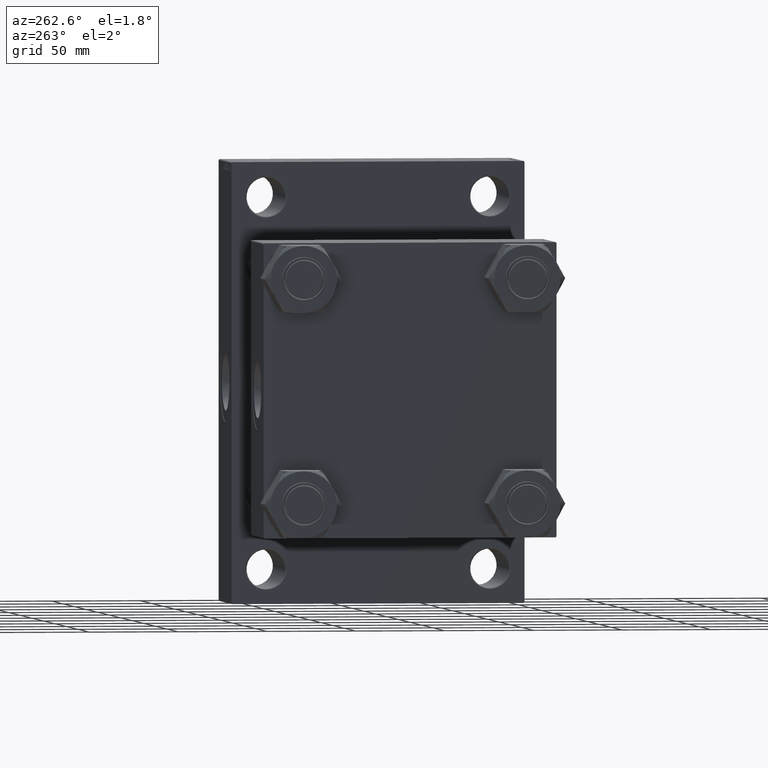
[diagram: clean part render]
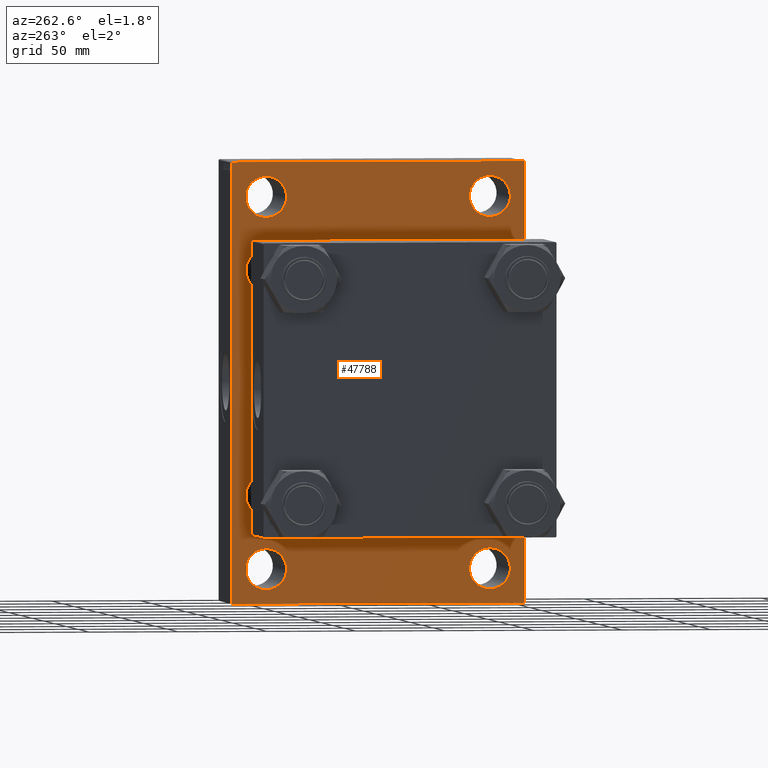
[diagram: same view with one face highlighted and labeled with its STEP entity id]
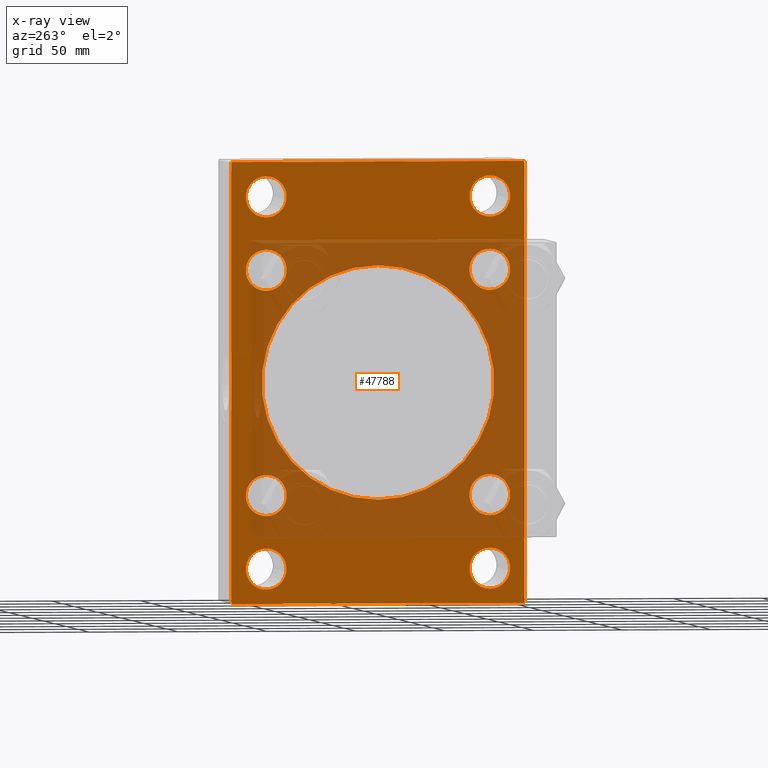
[diagram: x-ray of the same camera — body ghosted, the highlighted face saturated]
A machine part, auxiliary view. The second image highlights one B-rep face of the part: STEP entity #47788.
The next image is the same camera in x-ray: the body ghosted, the highlighted face saturated — about 44% of this face is hidden behind the body in this view.
In plain terms, the highlighted planar face has unit normal (-1, 0, 0).
Its self-contained STEP definition (entity closure, byte-faithful):
#7 = VERTEX_POINT ( 'NONE', #10644 ) ;
#52 = EDGE_CURVE ( 'NONE', #36398, #427, #21658, .T. ) ;
#310 = CARTESIAN_POINT ( 'NONE',  ( 139.0000000000000000, 63.00000000000000000, -104.0000000000000142 ) ) ;
#347 = DIRECTION ( 'NONE',  ( 0.000000000000000000, -1.000000000000000000, -2.523234146875355505E-16 ) ) ;
#427 = VERTEX_POINT ( 'NONE', #430 ) ;
#430 = CARTESIAN_POINT ( 'NONE',  ( 139.0000000000000000, -63.00000000000000000, -92.50000000000000000 ) ) ;
#460 = ORIENTED_EDGE ( 'NONE', *, *, #52, .T. ) ;
#635 = CARTESIAN_POINT ( 'NONE',  ( 139.0000000000000000, -62.94999999999998153, -74.45000000000001705 ) ) ;
#948 = CARTESIAN_POINT ( 'NONE',  ( 139.0000000000000000, -102.7499999999988916, -102.7500000000017479 ) ) ;
#1232 = VECTOR ( 'NONE', #13687, 1000.000000000000000 ) ;
#1686 = DIRECTION ( 'NONE',  ( 0.000000000000000000, 0.000000000000000000, 1.000000000000000000 ) ) ;
#1852 = VECTOR ( 'NONE', #347, 1000.000000000000000 ) ;
#1961 = VERTEX_POINT ( 'NONE', #44917 ) ;
#2002 = LINE ( 'NONE', #42160, #28054 ) ;
#2134 = VERTEX_POINT ( 'NONE', #33017 ) ;
#2509 = CIRCLE ( 'NONE', #29536, 65.50000000000001421 ) ;
#2621 = DIRECTION ( 'NONE',  ( 0.000000000000000000, 0.000000000000000000, 1.000000000000000000 ) ) ;
#2976 = DIRECTION ( 'NONE',  ( 1.000000000000000000, -0.000000000000000000, 0.000000000000000000 ) ) ;
#3001 = DIRECTION ( 'NONE',  ( 0.000000000000000000, 0.000000000000000000, 1.000000000000000000 ) ) ;
#3077 = CIRCLE ( 'NONE', #26223, 11.50000000000001066 ) ;
#3118 = EDGE_LOOP ( 'NONE', ( #14880, #460 ) ) ;
#3142 = ORIENTED_EDGE ( 'NONE', *, *, #6940, .T. ) ;
#3336 = CIRCLE ( 'NONE', #24084, 11.50000000000001066 ) ;
#3717 = AXIS2_PLACEMENT_3D ( 'NONE', #29909, #40093, #26040 ) ;
#3765 = CARTESIAN_POINT ( 'NONE',  ( 139.0000000000000000, -2.602085213965210642E-15, 0.000000000000000000 ) ) ;
#4048 = EDGE_CURVE ( 'NONE', #25468, #4156, #32752, .T. ) ;
#4156 = VERTEX_POINT ( 'NONE', #46028 ) ;
#4303 = EDGE_CURVE ( 'NONE', #4930, #45334, #32595, .T. ) ;
#4428 = CARTESIAN_POINT ( 'NONE',  ( 139.0000000000000000, 82.49999999999998579, 123.5000000000000142 ) ) ;
#4930 = VERTEX_POINT ( 'NONE', #26778 ) ;
#4969 = CARTESIAN_POINT ( 'NONE',  ( 139.0000000000000000, -62.94999999999998153, -62.95000000000001705 ) ) ;
#5180 = ORIENTED_EDGE ( 'NONE', *, *, #47631, .T. ) ;
#5218 = DIRECTION ( 'NONE',  ( 0.000000000000000000, 0.000000000000000000, -1.000000000000000000 ) ) ;
#5584 = EDGE_CURVE ( 'NONE', #34839, #46292, #15618, .T. ) ;
#6067 = VERTEX_POINT ( 'NONE', #32578 ) ;
#6397 = EDGE_CURVE ( 'NONE', #44848, #31204, #24928, .T. ) ;
#6537 = EDGE_LOOP ( 'NONE', ( #32022, #11633 ) ) ;
#6635 = CARTESIAN_POINT ( 'NONE',  ( 139.0000000000000000, 102.7500000000046043, 102.7499999999931788 ) ) ;
#6648 = CARTESIAN_POINT ( 'NONE',  ( 139.0000000000000000, 63.00000000000000000, -92.50000000000000000 ) ) ;
#6906 = CARTESIAN_POINT ( 'NONE',  ( 139.0000000000000000, -102.7499999999966036, 102.7500000000051728 ) ) ;
#6940 = EDGE_CURVE ( 'NONE', #45069, #43299, #36512, .T. ) ;
#7331 = EDGE_CURVE ( 'NONE', #30732, #6067, #32591, .T. ) ;
#7813 = VECTOR ( 'NONE', #25722, 1000.000000000000000 ) ;
#7821 = ORIENTED_EDGE ( 'NONE', *, *, #14750, .T. ) ;
#7829 = EDGE_CURVE ( 'NONE', #9367, #1961, #3336, .T. ) ;
#8103 = CARTESIAN_POINT ( 'NONE',  ( 139.0000000000000000, -63.00000000000000000, -115.5000000000000142 ) ) ;
#8750 = EDGE_CURVE ( 'NONE', #6067, #30732, #29497, .T. ) ;
#9311 = EDGE_CURVE ( 'NONE', #22607, #7, #10206, .T. ) ;
#9367 = VERTEX_POINT ( 'NONE', #13737 ) ;
#9373 = CARTESIAN_POINT ( 'NONE',  ( 139.0000000000000000, -63.00000000000000000, 92.49999999999997158 ) ) ;
#9737 = EDGE_CURVE ( 'NONE', #43299, #45069, #2509, .T. ) ;
#10178 = FACE_BOUND ( 'NONE', #24766, .T. ) ;
#10206 = CIRCLE ( 'NONE', #37218, 11.50000000000001066 ) ;
#10301 = DIRECTION ( 'NONE',  ( 1.000000000000000000, -0.000000000000000000, 0.000000000000000000 ) ) ;
#10421 = PLANE ( 'NONE',  #31552 ) ;
#10644 = CARTESIAN_POINT ( 'NONE',  ( 139.0000000000000000, -62.94999999999998153, 74.45000000000003126 ) ) ;
#10877 = FACE_BOUND ( 'NONE', #24497, .T. ) ;
#10926 = DIRECTION ( 'NONE',  ( 0.000000000000000000, 0.000000000000000000, 1.000000000000000000 ) ) ;
#11262 = DIRECTION ( 'NONE',  ( 0.000000000000000000, 0.000000000000000000, 1.000000000000000000 ) ) ;
#11324 = EDGE_CURVE ( 'NONE', #46292, #34839, #20332, .T. ) ;
#11633 = ORIENTED_EDGE ( 'NONE', *, *, #11324, .T. ) ;
#11680 = EDGE_CURVE ( 'NONE', #45980, #30106, #2002, .T. ) ;
#11742 = CARTESIAN_POINT ( 'NONE',  ( 139.0000000000000000, 82.00000000000005684, -123.5000000000000000 ) ) ;
#11981 = DIRECTION ( 'NONE',  ( 0.000000000000000000, 0.000000000000000000, 1.000000000000000000 ) ) ;
#11997 = CARTESIAN_POINT ( 'NONE',  ( 139.0000000000000000, 82.49999999999998579, 123.0000000000000142 ) ) ;
#12388 = VERTEX_POINT ( 'NONE', #6648 ) ;
#12560 = CARTESIAN_POINT ( 'NONE',  ( 139.0000000000000000, -82.00000000000002842, -123.5000000000000142 ) ) ;
#12716 = AXIS2_PLACEMENT_3D ( 'NONE', #21772, #26090, #37456 ) ;
#13001 = CIRCLE ( 'NONE', #26927, 11.50000000000001066 ) ;
#13033 = CARTESIAN_POINT ( 'NONE',  ( 139.0000000000000000, -2.602085213965210642E-15, 65.50000000000001421 ) ) ;
#13122 = DIRECTION ( 'NONE',  ( -0.000000000000000000, -0.7071067811865769936, -0.7071067811865181518 ) ) ;
#13273 = EDGE_CURVE ( 'NONE', #42071, #2134, #32997, .T. ) ;
#13388 = EDGE_LOOP ( 'NONE', ( #14394, #25330, #30772, #14126, #23441, #27231, #16742, #17963 ) ) ;
#13444 = CARTESIAN_POINT ( 'NONE',  ( 139.0000000000000000, -2.602085213965210642E-15, 0.000000000000000000 ) ) ;
#13504 = DIRECTION ( 'NONE',  ( 1.000000000000000000, -0.000000000000000000, 0.000000000000000000 ) ) ;
#13687 = DIRECTION ( 'NONE',  ( -0.000000000000000000, 0.7071067811865769936, 0.7071067811865181518 ) ) ;
#13737 = CARTESIAN_POINT ( 'NONE',  ( 139.0000000000000000, 63.00000000000000000, 115.5000000000000000 ) ) ;
#13783 = CARTESIAN_POINT ( 'NONE',  ( 139.0000000000000000, 5.419351320449953395E-15, -65.50000000000001421 ) ) ;
#14077 = AXIS2_PLACEMENT_3D ( 'NONE', #24861, #37396, #11262 ) ;
#14126 = ORIENTED_EDGE ( 'NONE', *, *, #16879, .T. ) ;
#14394 = ORIENTED_EDGE ( 'NONE', *, *, #32534, .T. ) ;
#14491 = CARTESIAN_POINT ( 'NONE',  ( 139.0000000000000000, 82.50000000000000000, -123.0000000000000995 ) ) ;
#14600 = CARTESIAN_POINT ( 'NONE',  ( 139.0000000000000000, 63.00000000000000000, -115.5000000000000142 ) ) ;
#14605 = CARTESIAN_POINT ( 'NONE',  ( 139.0000000000000000, 63.00000000000000000, 104.0000000000000000 ) ) ;
#14750 = EDGE_CURVE ( 'NONE', #29487, #12388, #35895, .T. ) ;
#14880 = ORIENTED_EDGE ( 'NONE', *, *, #39093, .T. ) ;
#14951 = EDGE_CURVE ( 'NONE', #47887, #4156, #42294, .T. ) ;
#15041 = DIRECTION ( 'NONE',  ( 1.000000000000000000, -0.000000000000000000, 0.000000000000000000 ) ) ;
#15618 = CIRCLE ( 'NONE', #46551, 11.49999999999999645 ) ;
#16150 = VECTOR ( 'NONE', #32523, 1000.000000000000000 ) ;
#16459 = VECTOR ( 'NONE', #27778, 1000.000000000000000 ) ;
#16648 = CARTESIAN_POINT ( 'NONE',  ( 139.0000000000000000, -62.94999999999998153, 62.95000000000001705 ) ) ;
#16714 = CARTESIAN_POINT ( 'NONE',  ( 139.0000000000000000, 62.95000000000000284, 62.95000000000000284 ) ) ;
#16730 = CARTESIAN_POINT ( 'NONE',  ( 139.0000000000000000, -63.00000000000000000, 103.9999999999999858 ) ) ;
#16742 = ORIENTED_EDGE ( 'NONE', *, *, #38761, .T. ) ;
#16879 = EDGE_CURVE ( 'NONE', #25468, #2134, #22779, .T. ) ;
#17521 = LINE ( 'NONE', #6635, #16150 ) ;
#17679 = FACE_BOUND ( 'NONE', #6537, .T. ) ;
#17963 = ORIENTED_EDGE ( 'NONE', *, *, #11680, .T. ) ;
#17966 = CARTESIAN_POINT ( 'NONE',  ( 139.0000000000000000, -62.94999999999998153, 62.95000000000001705 ) ) ;
#18151 = FACE_BOUND ( 'NONE', #39607, .T. ) ;
#18284 = DIRECTION ( 'NONE',  ( 1.000000000000000000, 0.000000000000000000, 0.000000000000000000 ) ) ;
#19574 = DIRECTION ( 'NONE',  ( 0.000000000000000000, -0.7071067811865573427, 0.7071067811865378028 ) ) ;
#20033 = ORIENTED_EDGE ( 'NONE', *, *, #9737, .T. ) ;
#20178 = ORIENTED_EDGE ( 'NONE', *, *, #7829, .T. ) ;
#20332 = CIRCLE ( 'NONE', #38857, 11.49999999999999645 ) ;
#20827 = CARTESIAN_POINT ( 'NONE',  ( 139.0000000000000000, 82.00000000000004263, 123.5000000000000142 ) ) ;
#20853 = AXIS2_PLACEMENT_3D ( 'NONE', #35821, #47453, #29267 ) ;
#20889 = CIRCLE ( 'NONE', #47190, 11.50000000000001066 ) ;
#21335 = DIRECTION ( 'NONE',  ( 1.000000000000000000, -0.000000000000000000, 0.000000000000000000 ) ) ;
#21658 = CIRCLE ( 'NONE', #20853, 11.50000000000001066 ) ;
#21772 = CARTESIAN_POINT ( 'NONE',  ( 139.0000000000000000, 63.00000000000000000, -104.0000000000000142 ) ) ;
#22607 = VERTEX_POINT ( 'NONE', #24845 ) ;
#22779 = LINE ( 'NONE', #6906, #1232 ) ;
#23441 = ORIENTED_EDGE ( 'NONE', *, *, #13273, .F. ) ;
#23618 = DIRECTION ( 'NONE',  ( 1.000000000000000000, 0.000000000000000000, 0.000000000000000000 ) ) ;
#23935 = CARTESIAN_POINT ( 'NONE',  ( 139.0000000000000000, -62.94999999999998153, -62.95000000000001705 ) ) ;
#24025 = EDGE_CURVE ( 'NONE', #1961, #9367, #36927, .T. ) ;
#24084 = AXIS2_PLACEMENT_3D ( 'NONE', #14605, #24855, #37085 ) ;
#24497 = EDGE_LOOP ( 'NONE', ( #20033, #3142 ) ) ;
#24766 = EDGE_LOOP ( 'NONE', ( #25109, #31645 ) ) ;
#24845 = CARTESIAN_POINT ( 'NONE',  ( 139.0000000000000000, -62.94999999999998153, 51.45000000000000995 ) ) ;
#24855 = DIRECTION ( 'NONE',  ( 1.000000000000000000, -0.000000000000000000, 0.000000000000000000 ) ) ;
#24861 = CARTESIAN_POINT ( 'NONE',  ( 139.0000000000000000, 62.95000000000000284, -62.95000000000000284 ) ) ;
#24928 = CIRCLE ( 'NONE', #47360, 11.49999999999999645 ) ;
#24945 = DIRECTION ( 'NONE',  ( -0.000000000000000000, 0.000000000000000000, 1.000000000000000000 ) ) ;
#25109 = ORIENTED_EDGE ( 'NONE', *, *, #8750, .T. ) ;
#25330 = ORIENTED_EDGE ( 'NONE', *, *, #14951, .T. ) ;
#25468 = VERTEX_POINT ( 'NONE', #25938 ) ;
#25642 = FACE_OUTER_BOUND ( 'NONE', #13388, .T. ) ;
#25722 = DIRECTION ( 'NONE',  ( 0.000000000000000000, 0.000000000000000000, -1.000000000000000000 ) ) ;
#25750 = AXIS2_PLACEMENT_3D ( 'NONE', #43450, #10301, #25994 ) ;
#25938 = CARTESIAN_POINT ( 'NONE',  ( 139.0000000000000000, -82.50000000000002842, 123.0000000000000853 ) ) ;
#25994 = DIRECTION ( 'NONE',  ( 0.000000000000000000, 0.000000000000000000, 1.000000000000000000 ) ) ;
#26040 = DIRECTION ( 'NONE',  ( 0.000000000000000000, 0.000000000000000000, 1.000000000000000000 ) ) ;
#26090 = DIRECTION ( 'NONE',  ( 1.000000000000000000, -0.000000000000000000, 0.000000000000000000 ) ) ;
#26223 = AXIS2_PLACEMENT_3D ( 'NONE', #34176, #27637, #38282 ) ;
#26325 = CIRCLE ( 'NONE', #31730, 11.49999999999999645 ) ;
#26778 = CARTESIAN_POINT ( 'NONE',  ( 139.0000000000000000, -63.00000000000000000, 115.4999999999999858 ) ) ;
#26927 = AXIS2_PLACEMENT_3D ( 'NONE', #310, #15041, #29798 ) ;
#27231 = ORIENTED_EDGE ( 'NONE', *, *, #28606, .T. ) ;
#27372 = CARTESIAN_POINT ( 'NONE',  ( 139.0000000000000000, 82.50000000000000000, -123.5000000000000000 ) ) ;
#27558 = DIRECTION ( 'NONE',  ( 1.000000000000000000, -0.000000000000000000, 0.000000000000000000 ) ) ;
#27637 = DIRECTION ( 'NONE',  ( 1.000000000000000000, -0.000000000000000000, 0.000000000000000000 ) ) ;
#27778 = DIRECTION ( 'NONE',  ( 0.000000000000000000, 5.618537574013950123E-17, -1.000000000000000000 ) ) ;
#27843 = DIRECTION ( 'NONE',  ( 0.000000000000000000, -1.000000000000000000, -8.410780489584517938E-17 ) ) ;
#28054 = VECTOR ( 'NONE', #13122, 1000.000000000000000 ) ;
#28372 = EDGE_LOOP ( 'NONE', ( #42128, #30930 ) ) ;
#28606 = EDGE_CURVE ( 'NONE', #42071, #30939, #17521, .T. ) ;
#28643 = DIRECTION ( 'NONE',  ( 1.000000000000000000, -0.000000000000000000, 0.000000000000000000 ) ) ;
#28728 = ORIENTED_EDGE ( 'NONE', *, *, #6397, .T. ) ;
#29267 = DIRECTION ( 'NONE',  ( 0.000000000000000000, 0.000000000000000000, 1.000000000000000000 ) ) ;
#29487 = VERTEX_POINT ( 'NONE', #14600 ) ;
#29497 = CIRCLE ( 'NONE', #14077, 11.49999999999999645 ) ;
#29536 = AXIS2_PLACEMENT_3D ( 'NONE', #13444, #23618, #5218 ) ;
#29798 = DIRECTION ( 'NONE',  ( 0.000000000000000000, 0.000000000000000000, 1.000000000000000000 ) ) ;
#29811 = EDGE_CURVE ( 'NONE', #45334, #4930, #3077, .T. ) ;
#29909 = CARTESIAN_POINT ( 'NONE',  ( 139.0000000000000000, 63.00000000000000000, 104.0000000000000000 ) ) ;
#30106 = VERTEX_POINT ( 'NONE', #11742 ) ;
#30732 = VERTEX_POINT ( 'NONE', #47137 ) ;
#30772 = ORIENTED_EDGE ( 'NONE', *, *, #4048, .F. ) ;
#30930 = ORIENTED_EDGE ( 'NONE', *, *, #9311, .T. ) ;
#30939 = VERTEX_POINT ( 'NONE', #11997 ) ;
#31204 = VERTEX_POINT ( 'NONE', #44382 ) ;
#31552 = AXIS2_PLACEMENT_3D ( 'NONE', #32443, #40393, #24945 ) ;
#31574 = EDGE_CURVE ( 'NONE', #7, #22607, #20889, .T. ) ;
#31645 = ORIENTED_EDGE ( 'NONE', *, *, #7331, .T. ) ;
#31730 = AXIS2_PLACEMENT_3D ( 'NONE', #16714, #39198, #35105 ) ;
#32022 = ORIENTED_EDGE ( 'NONE', *, *, #5584, .T. ) ;
#32443 = CARTESIAN_POINT ( 'NONE',  ( 139.0000000000000000, 0.000000000000000000, 0.000000000000000000 ) ) ;
#32523 = DIRECTION ( 'NONE',  ( 0.000000000000000000, 0.7071067811865081598, -0.7071067811865868746 ) ) ;
#32534 = EDGE_CURVE ( 'NONE', #30106, #47887, #38725, .T. ) ;
#32578 = CARTESIAN_POINT ( 'NONE',  ( 139.0000000000000000, 62.95000000000000284, -51.45000000000000995 ) ) ;
#32591 = CIRCLE ( 'NONE', #33434, 11.49999999999999645 ) ;
#32595 = CIRCLE ( 'NONE', #34899, 11.50000000000001066 ) ;
#32625 = EDGE_CURVE ( 'NONE', #31204, #44848, #26325, .T. ) ;
#32710 = CARTESIAN_POINT ( 'NONE',  ( 139.0000000000000000, 62.95000000000000284, 74.45000000000000284 ) ) ;
#32752 = LINE ( 'NONE', #33445, #7813 ) ;
#32997 = LINE ( 'NONE', #4428, #1852 ) ;
#33017 = CARTESIAN_POINT ( 'NONE',  ( 139.0000000000000000, -82.00000000000009948, 123.4999999999999716 ) ) ;
#33434 = AXIS2_PLACEMENT_3D ( 'NONE', #37973, #45259, #38224 ) ;
#33445 = CARTESIAN_POINT ( 'NONE',  ( 139.0000000000000000, -82.50000000000002842, 123.4999999999999716 ) ) ;
#33912 = ORIENTED_EDGE ( 'NONE', *, *, #32625, .T. ) ;
#33962 = ORIENTED_EDGE ( 'NONE', *, *, #4303, .T. ) ;
#34137 = ORIENTED_EDGE ( 'NONE', *, *, #29811, .T. ) ;
#34176 = CARTESIAN_POINT ( 'NONE',  ( 139.0000000000000000, -63.00000000000000000, 103.9999999999999858 ) ) ;
#34478 = DIRECTION ( 'NONE',  ( 1.000000000000000000, -0.000000000000000000, 0.000000000000000000 ) ) ;
#34839 = VERTEX_POINT ( 'NONE', #40825 ) ;
#34899 = AXIS2_PLACEMENT_3D ( 'NONE', #16730, #21335, #47229 ) ;
#35105 = DIRECTION ( 'NONE',  ( 0.000000000000000000, 0.000000000000000000, 1.000000000000000000 ) ) ;
#35407 = CARTESIAN_POINT ( 'NONE',  ( 139.0000000000000000, 62.95000000000000284, 62.95000000000000284 ) ) ;
#35821 = CARTESIAN_POINT ( 'NONE',  ( 139.0000000000000000, -63.00000000000000000, -104.0000000000000142 ) ) ;
#35823 = FACE_BOUND ( 'NONE', #37603, .T. ) ;
#35895 = CIRCLE ( 'NONE', #12716, 11.50000000000001066 ) ;
#36398 = VERTEX_POINT ( 'NONE', #8103 ) ;
#36512 = CIRCLE ( 'NONE', #39595, 65.50000000000001421 ) ;
#36529 = FACE_BOUND ( 'NONE', #3118, .T. ) ;
#36927 = CIRCLE ( 'NONE', #3717, 11.50000000000001066 ) ;
#37085 = DIRECTION ( 'NONE',  ( 0.000000000000000000, 0.000000000000000000, 1.000000000000000000 ) ) ;
#37218 = AXIS2_PLACEMENT_3D ( 'NONE', #16648, #13504, #2621 ) ;
#37383 = DIRECTION ( 'NONE',  ( 0.000000000000000000, 0.000000000000000000, -1.000000000000000000 ) ) ;
#37396 = DIRECTION ( 'NONE',  ( 1.000000000000000000, -0.000000000000000000, 0.000000000000000000 ) ) ;
#37456 = DIRECTION ( 'NONE',  ( 0.000000000000000000, 0.000000000000000000, 1.000000000000000000 ) ) ;
#37603 = EDGE_LOOP ( 'NONE', ( #20178, #44962 ) ) ;
#37633 = EDGE_LOOP ( 'NONE', ( #28728, #33912 ) ) ;
#37973 = CARTESIAN_POINT ( 'NONE',  ( 139.0000000000000000, 62.95000000000000284, -62.95000000000000284 ) ) ;
#38224 = DIRECTION ( 'NONE',  ( 0.000000000000000000, 0.000000000000000000, 1.000000000000000000 ) ) ;
#38282 = DIRECTION ( 'NONE',  ( 0.000000000000000000, 0.000000000000000000, 1.000000000000000000 ) ) ;
#38725 = LINE ( 'NONE', #27372, #40189 ) ;
#38761 = EDGE_CURVE ( 'NONE', #30939, #45980, #46905, .T. ) ;
#38857 = AXIS2_PLACEMENT_3D ( 'NONE', #4969, #34478, #11981 ) ;
#39093 = EDGE_CURVE ( 'NONE', #427, #36398, #46634, .T. ) ;
#39198 = DIRECTION ( 'NONE',  ( 1.000000000000000000, -0.000000000000000000, 0.000000000000000000 ) ) ;
#39595 = AXIS2_PLACEMENT_3D ( 'NONE', #3765, #18284, #37383 ) ;
#39607 = EDGE_LOOP ( 'NONE', ( #5180, #7821 ) ) ;
#40093 = DIRECTION ( 'NONE',  ( 1.000000000000000000, -0.000000000000000000, 0.000000000000000000 ) ) ;
#40189 = VECTOR ( 'NONE', #27843, 1000.000000000000000 ) ;
#40393 = DIRECTION ( 'NONE',  ( -1.000000000000000000, 0.000000000000000000, -0.000000000000000000 ) ) ;
#40825 = CARTESIAN_POINT ( 'NONE',  ( 139.0000000000000000, -62.94999999999998153, -51.45000000000002416 ) ) ;
#42071 = VERTEX_POINT ( 'NONE', #20827 ) ;
#42128 = ORIENTED_EDGE ( 'NONE', *, *, #31574, .T. ) ;
#42160 = CARTESIAN_POINT ( 'NONE',  ( 139.0000000000000000, 102.7499999999966320, -102.7500000000051870 ) ) ;
#42294 = LINE ( 'NONE', #948, #42883 ) ;
#42883 = VECTOR ( 'NONE', #19574, 1000.000000000000000 ) ;
#43299 = VERTEX_POINT ( 'NONE', #13033 ) ;
#43332 = FACE_BOUND ( 'NONE', #37633, .T. ) ;
#43450 = CARTESIAN_POINT ( 'NONE',  ( 139.0000000000000000, -63.00000000000000000, -104.0000000000000142 ) ) ;
#44037 = FACE_BOUND ( 'NONE', #28372, .T. ) ;
#44119 = EDGE_LOOP ( 'NONE', ( #33962, #34137 ) ) ;
#44382 = CARTESIAN_POINT ( 'NONE',  ( 139.0000000000000000, 62.95000000000000284, 51.45000000000000995 ) ) ;
#44848 = VERTEX_POINT ( 'NONE', #32710 ) ;
#44917 = CARTESIAN_POINT ( 'NONE',  ( 139.0000000000000000, 63.00000000000000000, 92.49999999999998579 ) ) ;
#44962 = ORIENTED_EDGE ( 'NONE', *, *, #24025, .T. ) ;
#45069 = VERTEX_POINT ( 'NONE', #13783 ) ;
#45259 = DIRECTION ( 'NONE',  ( 1.000000000000000000, -0.000000000000000000, 0.000000000000000000 ) ) ;
#45334 = VERTEX_POINT ( 'NONE', #9373 ) ;
#45980 = VERTEX_POINT ( 'NONE', #14491 ) ;
#46028 = CARTESIAN_POINT ( 'NONE',  ( 139.0000000000000000, -82.50000000000002842, -123.0000000000000284 ) ) ;
#46185 = CARTESIAN_POINT ( 'NONE',  ( 139.0000000000000000, 82.49999999999998579, 123.5000000000000142 ) ) ;
#46292 = VERTEX_POINT ( 'NONE', #635 ) ;
#46551 = AXIS2_PLACEMENT_3D ( 'NONE', #23935, #27558, #1686 ) ;
#46634 = CIRCLE ( 'NONE', #25750, 11.50000000000001066 ) ;
#46905 = LINE ( 'NONE', #46185, #16459 ) ;
#46970 = FACE_BOUND ( 'NONE', #44119, .T. ) ;
#47137 = CARTESIAN_POINT ( 'NONE',  ( 139.0000000000000000, 62.95000000000000284, -74.45000000000000284 ) ) ;
#47190 = AXIS2_PLACEMENT_3D ( 'NONE', #17966, #2976, #10926 ) ;
#47229 = DIRECTION ( 'NONE',  ( 0.000000000000000000, 0.000000000000000000, 1.000000000000000000 ) ) ;
#47360 = AXIS2_PLACEMENT_3D ( 'NONE', #35407, #28643, #3001 ) ;
#47453 = DIRECTION ( 'NONE',  ( 1.000000000000000000, -0.000000000000000000, 0.000000000000000000 ) ) ;
#47631 = EDGE_CURVE ( 'NONE', #12388, #29487, #13001, .T. ) ;
#47788 = ADVANCED_FACE ( 'NONE', ( #46970, #36529, #18151, #35823, #44037, #43332, #10178, #17679, #10877, #25642 ), #10421, .T. ) ;
#47887 = VERTEX_POINT ( 'NONE', #12560 ) ;